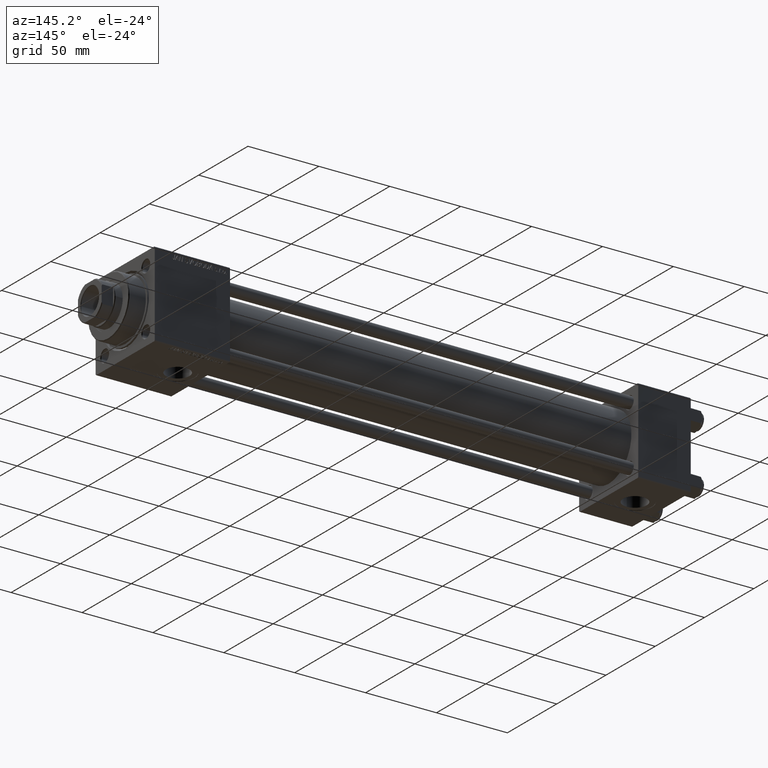
[diagram: clean part render]
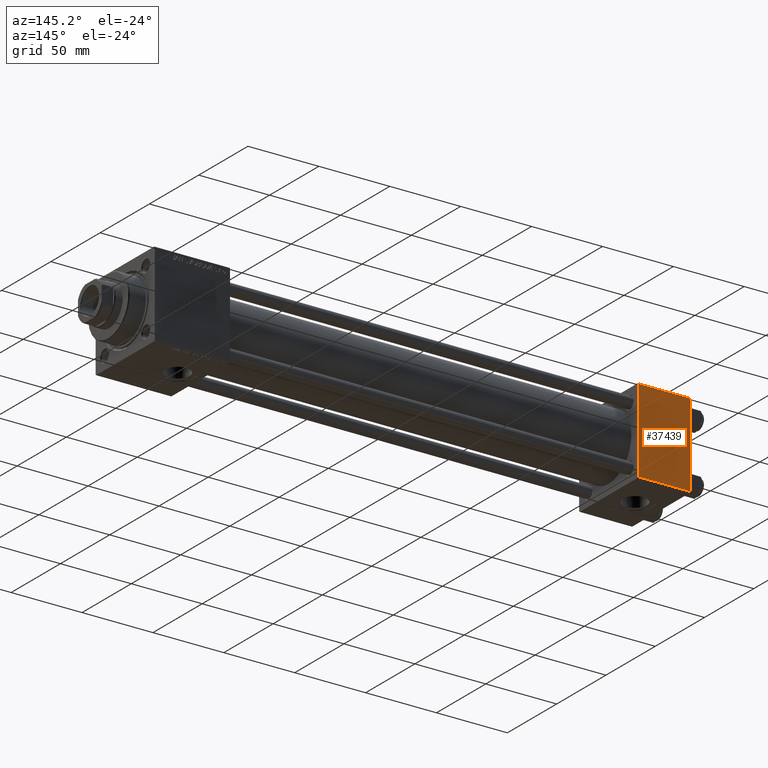
[diagram: same view with one face highlighted and labeled with its STEP entity id]
A machine part, auxiliary view. The second image highlights one B-rep face of the part: STEP entity #37439.
In plain terms, the highlighted planar face has unit normal (0, 1, 0).
Its self-contained STEP definition (entity closure, byte-faithful):
#1920 = CARTESIAN_POINT ( 'NONE',  ( 37.00000000000000000, 29.99999999999999289, 29.50000000000000000 ) ) ;
#2608 = LINE ( 'NONE', #33549, #48383 ) ;
#2766 = CARTESIAN_POINT ( 'NONE',  ( 37.00000000000000000, 29.99999999999999289, 30.00000000000000000 ) ) ;
#4642 = VERTEX_POINT ( 'NONE', #15684 ) ;
#4704 = VERTEX_POINT ( 'NONE', #37694 ) ;
#5356 = LINE ( 'NONE', #17279, #49843 ) ;
#5716 = VECTOR ( 'NONE', #17481, 1000.000000000000000 ) ;
#9635 = LINE ( 'NONE', #28666, #5716 ) ;
#12342 = EDGE_CURVE ( 'NONE', #4642, #25227, #9635, .T. ) ;
#14262 = DIRECTION ( 'NONE',  ( 0.000000000000000000, 0.000000000000000000, -1.000000000000000000 ) ) ;
#15684 = CARTESIAN_POINT ( 'NONE',  ( 0.000000000000000000, 29.99999999999999289, 29.50000000000000000 ) ) ;
#17112 = ORIENTED_EDGE ( 'NONE', *, *, #12342, .T. ) ;
#17279 = CARTESIAN_POINT ( 'NONE',  ( 37.00000000000000000, 29.99999999999999289, 30.00000000000000000 ) ) ;
#17481 = DIRECTION ( 'NONE',  ( 1.000000000000000000, 0.000000000000000000, 0.000000000000000000 ) ) ;
#17731 = DIRECTION ( 'NONE',  ( 0.000000000000000000, -0.000000000000000000, 1.000000000000000000 ) ) ;
#21218 = CARTESIAN_POINT ( 'NONE',  ( 37.00000000000000000, 29.99999999999999289, -29.50000000000000000 ) ) ;
#22866 = EDGE_LOOP ( 'NONE', ( #48704, #28676, #49652, #17112 ) ) ;
#25227 = VERTEX_POINT ( 'NONE', #1920 ) ;
#27039 = EDGE_CURVE ( 'NONE', #25227, #29235, #5356, .T. ) ;
#28442 = EDGE_CURVE ( 'NONE', #29235, #4704, #28830, .T. ) ;
#28666 = CARTESIAN_POINT ( 'NONE',  ( 37.00000000000000000, 29.99999999999999289, 29.50000000000000000 ) ) ;
#28676 = ORIENTED_EDGE ( 'NONE', *, *, #28442, .T. ) ;
#28830 = LINE ( 'NONE', #21218, #46643 ) ;
#29089 = DIRECTION ( 'NONE',  ( -1.000000000000000000, 0.000000000000000000, 0.000000000000000000 ) ) ;
#29235 = VERTEX_POINT ( 'NONE', #33157 ) ;
#29406 = PLANE ( 'NONE',  #40322 ) ;
#33014 = DIRECTION ( 'NONE',  ( 0.000000000000000000, 0.000000000000000000, -1.000000000000000000 ) ) ;
#33157 = CARTESIAN_POINT ( 'NONE',  ( 37.00000000000000000, 29.99999999999999289, -29.50000000000000000 ) ) ;
#33549 = CARTESIAN_POINT ( 'NONE',  ( 0.000000000000000000, 29.99999999999999289, 30.00000000000000000 ) ) ;
#37439 = ADVANCED_FACE ( 'NONE', ( #49719 ), #29406, .T. ) ;
#37694 = CARTESIAN_POINT ( 'NONE',  ( 0.000000000000000000, 29.99999999999999289, -29.50000000000000000 ) ) ;
#40322 = AXIS2_PLACEMENT_3D ( 'NONE', #2766, #42098, #17731 ) ;
#42098 = DIRECTION ( 'NONE',  ( -0.000000000000000000, 1.000000000000000000, 0.000000000000000000 ) ) ;
#46643 = VECTOR ( 'NONE', #29089, 1000.000000000000000 ) ;
#48373 = EDGE_CURVE ( 'NONE', #4642, #4704, #2608, .T. ) ;
#48383 = VECTOR ( 'NONE', #14262, 1000.000000000000000 ) ;
#48704 = ORIENTED_EDGE ( 'NONE', *, *, #27039, .T. ) ;
#49652 = ORIENTED_EDGE ( 'NONE', *, *, #48373, .F. ) ;
#49719 = FACE_OUTER_BOUND ( 'NONE', #22866, .T. ) ;
#49843 = VECTOR ( 'NONE', #33014, 1000.000000000000000 ) ;